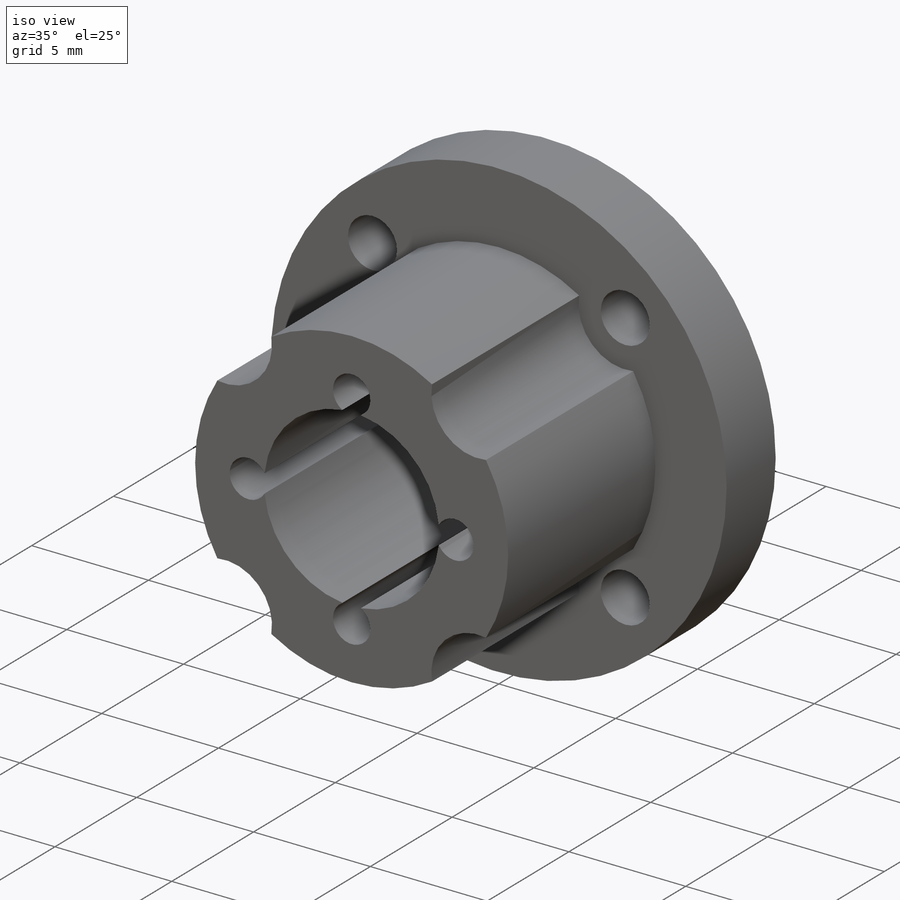
[diagram: iso view]
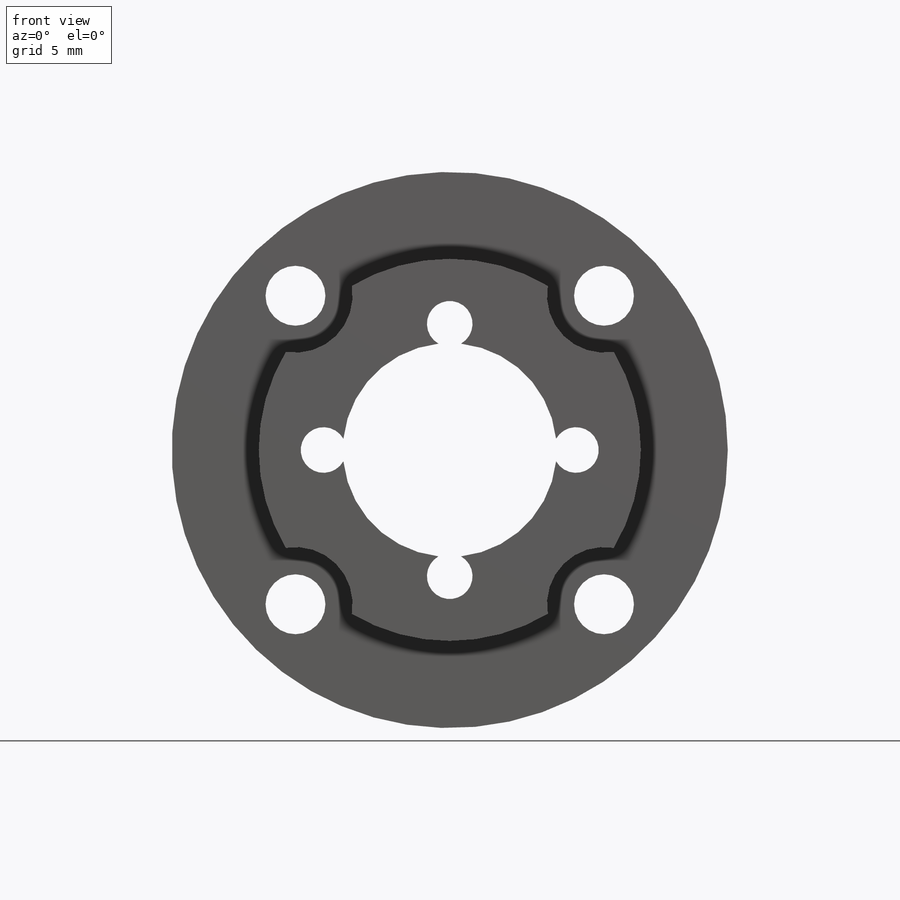
[diagram: front view]
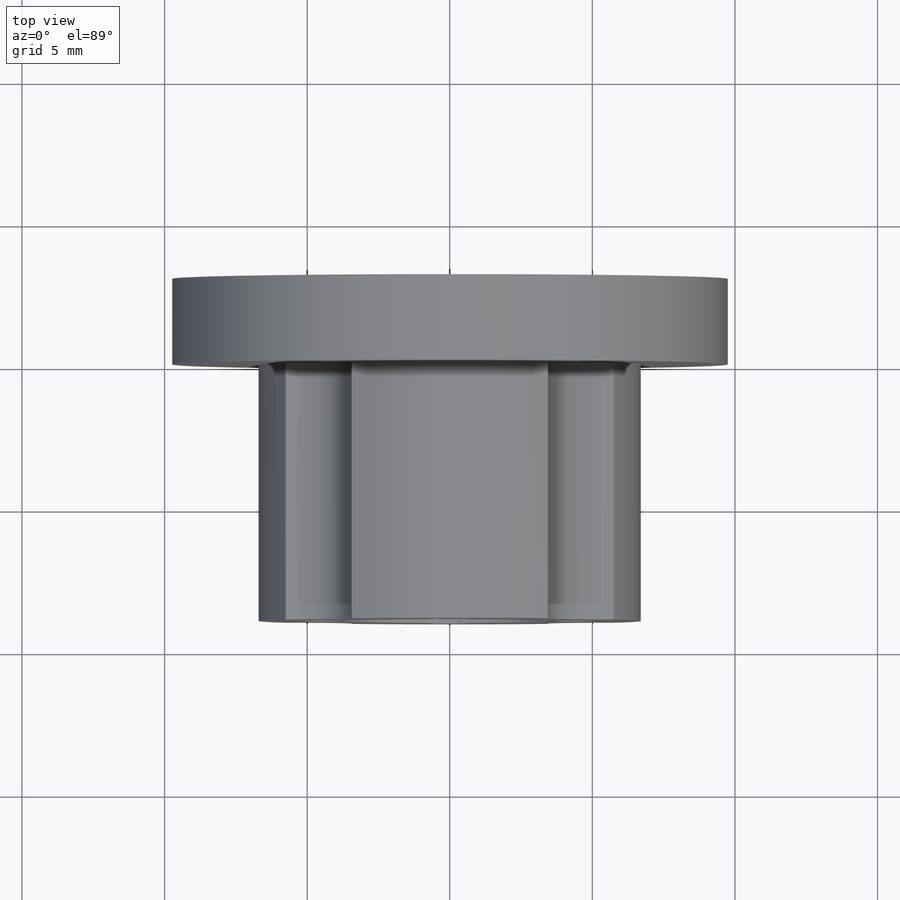
[diagram: top view]
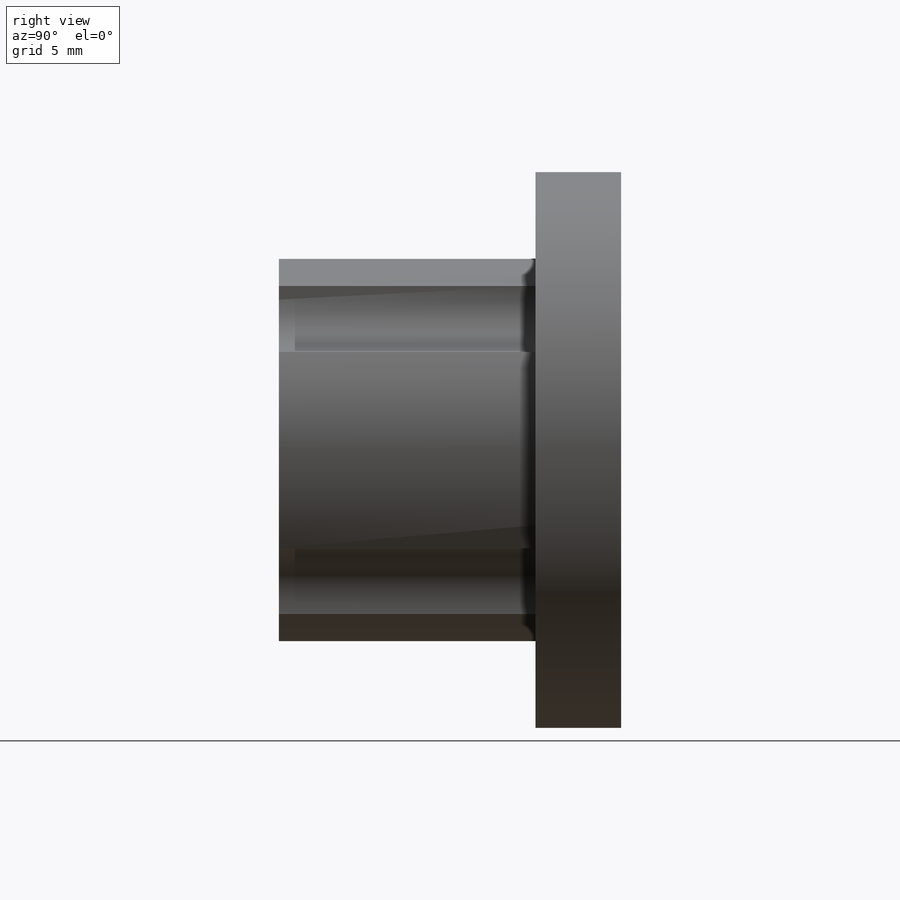
[diagram: right view]
SOLIDWORKS PART (.sldprt)
format: sldprt  version: not decoded by parser v0  size: 279,040 bytes
history: native  units: mm
features: sketch x6, thread x4, plane x3, extrude x2, cut_extrude x2, material x1, hole x1 (+9 scaffold rows collapsed)
feature tree (28):
  scaffold x9  (default folders/planes/origin — collapsed)
  material  "1.4003 (X2CrNi12)"
  plane  "Ebene vorne"
  plane  "Ebene oben"
  plane  "Ebene rechts"
  sketch  "Skizze1"  dims[c1.D1=7.5mm c1.D2=13.4mm c1.D3=2.0mm c1.D4=8.0mm c2.D3=19.5mm]
  extrude  "Aufsatz-Linear austragen1"  Depth=9mm
  extrude  "Aufsatz-Linear austragen2"  [1 undecoded]
  sketch  "Skizze1<7>"  dims[D1=3.0mm]
  hole  "M2 Gewindebohrung1"  [1 undecoded]
  sketch  "Skizze4"  dims[D1=8.85mm]
  thread  "Bohrungsgewinde1"  Diameter=2mm  [1 undecoded]
  thread  "Bohrungsgewinde2"  Diameter=2mm  [1 undecoded]
  thread  "Bohrungsgewinde3"  Diameter=2mm  [1 undecoded]
  thread  "Bohrungsgewinde4"  Diameter=2mm  [1 undecoded]
  sketch  "Skizze3"  dims[hole-wizard template sketch: 60 standard entries collapsed; hole parameters kept: c18.Bohrungstiefe=12.0mm]
  sketch  "Skizze5"  dims[c1.D1=2.1mm c1.D4=4.0mm c1.D2=15.3mm c1.D3=20.0mm c2.D3=45.0deg]
  cut_extrude  "Schnitt-Linear austragen1"  [1 undecoded]
  cut_extrude  "Schnitt-Linear austragen2"  [1 undecoded]
  sketch  "Skizze5<3>"
decode coverage: 10 of 15 modeling features carry decoded parameters
note: ~ marks probable driven/reference dimensions
note: 8 parameter values undecoded
summary: no parameter record found for 4 features
note: suppression state not decoded; provenance and decode notes live in map.json
